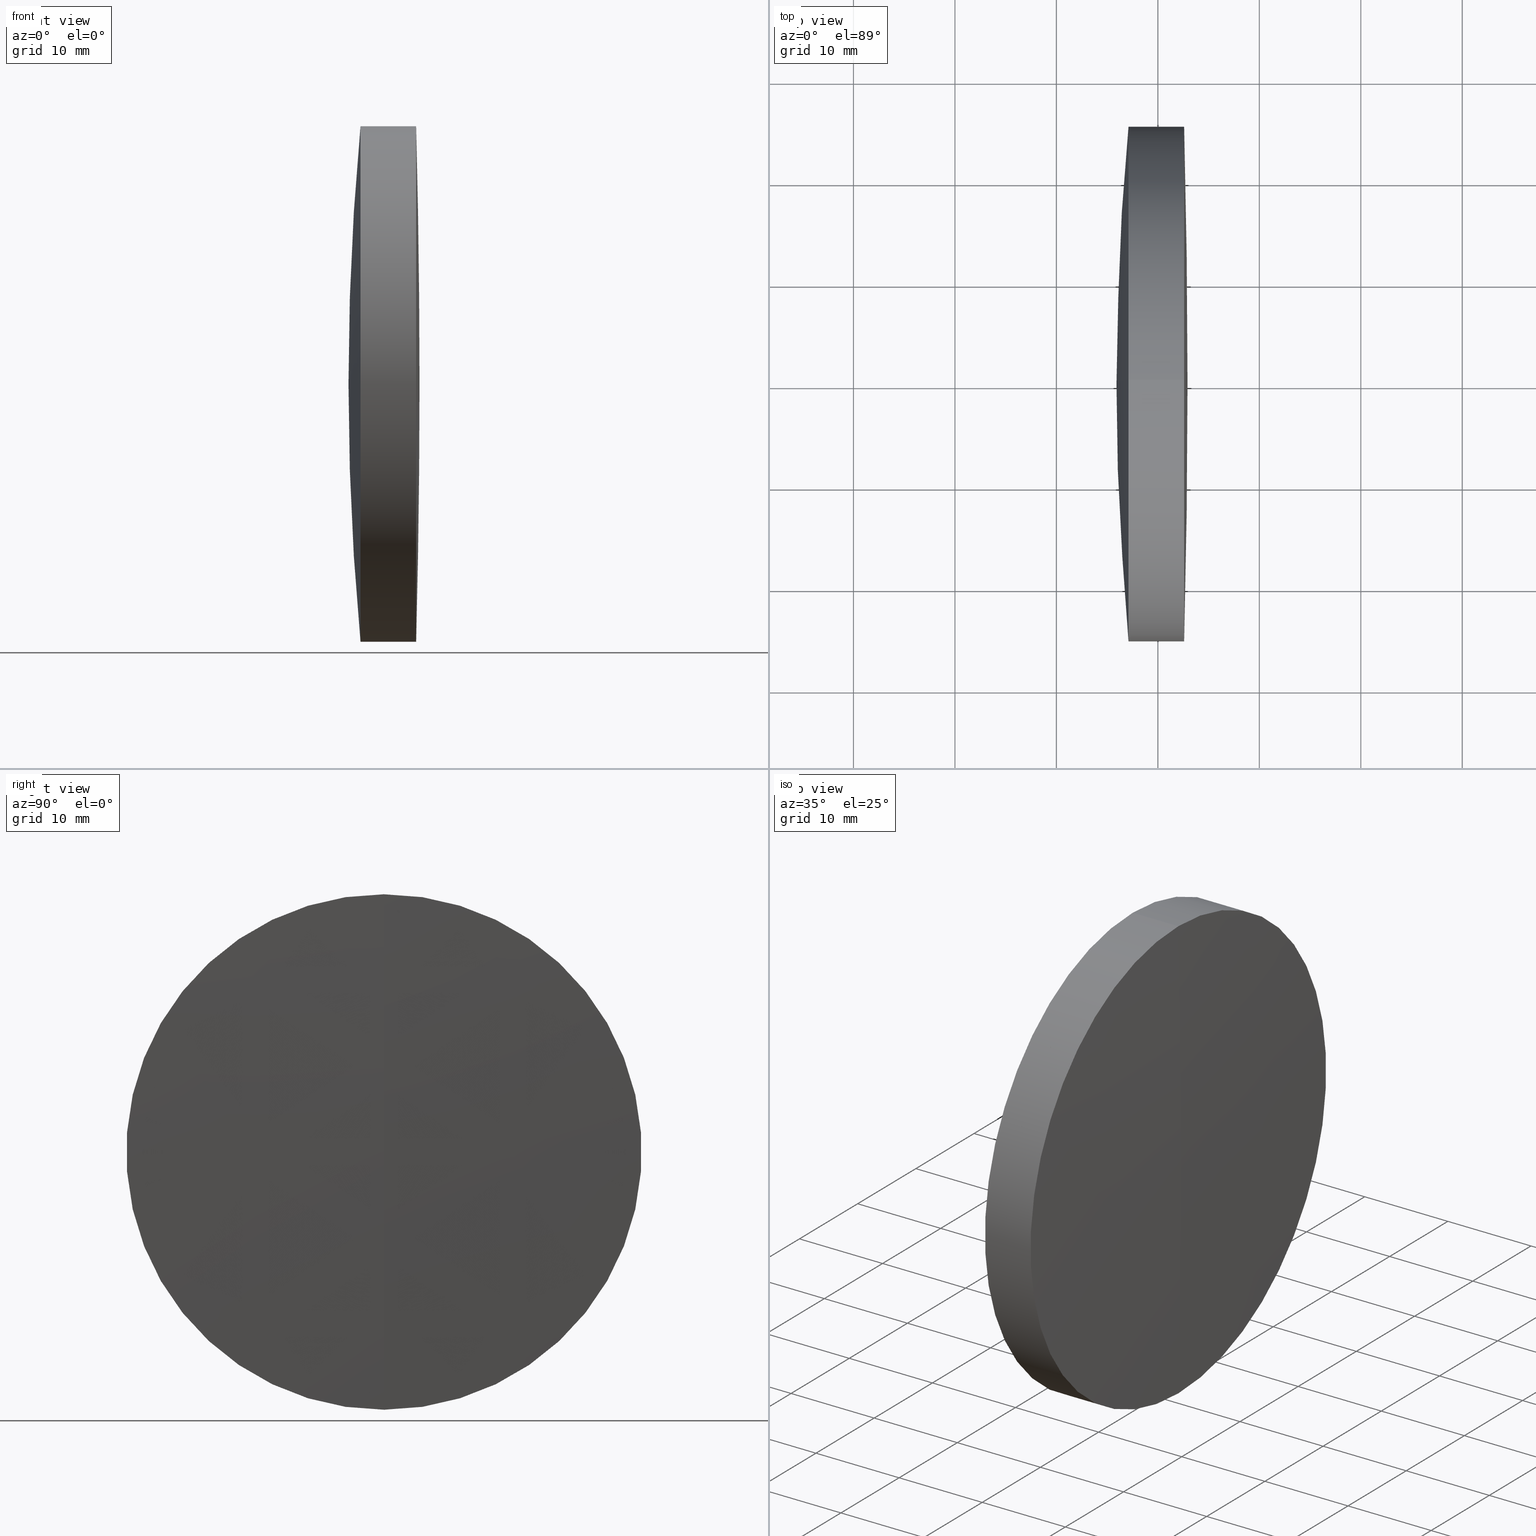
[diagram: canonical four-view strip — front | top / right | iso, engineering-drawing reading convention]
A machine part, canonical four-view strip (front | top / right | iso — engineering-drawing reading convention). The complete STEP part file that produces these views, byte-faithful:
ISO-10303-21;
HEADER;
FILE_DESCRIPTION (( 'STEP AP214' ),
    '1' );
FILE_NAME ('145093.STEP',
    '2019-05-24T10:15:04',
    ( '' ),
    ( '' ),
    'SwSTEP 2.0',
    'SolidWorks 2016',
    '' );
FILE_SCHEMA (( 'AUTOMOTIVE_DESIGN' ));
ENDSEC;

DATA;
#1 = FACE_OUTER_BOUND ( 'NONE', #96, .T. ) ;
#2 = SURFACE_SIDE_STYLE ('',( #38 ) ) ;
#3 =( LENGTH_UNIT ( ) NAMED_UNIT ( * ) SI_UNIT ( .MILLI., .METRE. ) );
#4 = UNCERTAINTY_MEASURE_WITH_UNIT (LENGTH_MEASURE( 1.000000000000000100E-005 ), #326, 'distance_accuracy_value', 'NONE');
#5 = DIRECTION ( 'NONE',  ( 0.0000000000000000000, 0.0000000000000000000, -1.000000000000000000 ) ) ;
#6 = VECTOR ( 'NONE', #11, 1000.000000000000000 ) ;
#7 = AXIS2_PLACEMENT_3D ( 'NONE', #74, #69, #272 ) ;
#8 = EDGE_CURVE ( 'NONE', #65, #235, #328, .T. ) ;
#9 = COLOUR_RGB ( '',1.000000000000000000, 1.000000000000000000, 1.000000000000000000 ) ;
#10 = ORIENTED_EDGE ( 'NONE', *, *, #193, .F. ) ;
#11 = DIRECTION ( 'NONE',  ( -1.000000000000000000, -0.0000000000000000000, -0.0000000000000000000 ) ) ;
#12 = EDGE_CURVE ( 'NONE', #211, #15, #39, .T. ) ;
#13 = EDGE_LOOP ( 'NONE', ( #18, #76, #257 ) ) ;
#14 = DIRECTION ( 'NONE',  ( 0.0000000000000000000, -1.000000000000000000, 0.0000000000000000000 ) ) ;
#15 = VERTEX_POINT ( 'NONE', #224 ) ;
#16 = DIRECTION ( 'NONE',  ( 0.0000000000000000000, 0.0000000000000000000, 1.000000000000000000 ) ) ;
#17 = DIRECTION ( 'NONE',  ( 0.0000000000000000000, -1.000000000000000000, 0.0000000000000000000 ) ) ;
#18 = ORIENTED_EDGE ( 'NONE', *, *, #8, .F. ) ;
#19 = CARTESIAN_POINT ( 'NONE',  ( 499.5922971757753400, 0.0000000000000000000, 25.39999999999962900 ) ) ;
#20 = CARTESIAN_POINT ( 'NONE',  ( 768.8217824430913700, 0.0000000000000000000, 4.399829893035820300E-015 ) ) ;
#21 = PRODUCT_DEFINITION_FORMATION_WITH_SPECIFIED_SOURCE ( '�κ�', '', #59, .NOT_KNOWN. ) ;
#22 = SPHERICAL_SURFACE ( 'NONE', #313, 272.9000000000000300 ) ;
#23 = FACE_OUTER_BOUND ( 'NONE', #129, .T. ) ;
#24 = DIRECTION ( 'NONE',  ( -0.0000000000000000000, -1.000000000000000000, -0.0000000000000000000 ) ) ;
#25 = FILL_AREA_STYLE ('',( #217 ) ) ;
#26 = FACE_OUTER_BOUND ( 'NONE', #173, .T. ) ;
#27 = PRESENTATION_STYLE_ASSIGNMENT (( #298 ) ) ;
#28 = ORIENTED_EDGE ( 'NONE', *, *, #205, .F. ) ;
#29 = CARTESIAN_POINT ( 'NONE',  ( 124.5233095260452400, 0.0000000000000000000, 0.0000000000000000000 ) ) ;
#30 = CIRCLE ( 'NONE', #325, 25.40000000000000200 ) ;
#31 = FACE_OUTER_BOUND ( 'NONE', #13, .T. ) ;
#32 = ORIENTED_EDGE ( 'NONE', *, *, #91, .F. ) ;
#33 = ORIENTED_EDGE ( 'NONE', *, *, #178, .F. ) ;
#34 = DIRECTION ( 'NONE',  ( -1.000000000000000000, -0.0000000000000000000, -0.0000000000000000000 ) ) ;
#35 = DIRECTION ( 'NONE',  ( 0.0000000000000000000, 0.0000000000000000000, 1.000000000000000000 ) ) ;
#36 = ORIENTED_EDGE ( 'NONE', *, *, #242, .T. ) ;
#37 = AXIS2_PLACEMENT_3D ( 'NONE', #290, #323, #346 ) ;
#38 = SURFACE_STYLE_FILL_AREA ( #327 ) ;
#39 = LINE ( 'NONE', #165, #6 ) ;
#40 = DIRECTION ( 'NONE',  ( 0.0000000000000000000, 1.000000000000000000, 0.0000000000000000000 ) ) ;
#41 = CARTESIAN_POINT ( 'NONE',  ( -467.0782175569086100, 0.0000000000000000000, 0.0000000000000000000 ) ) ;
#42 = ADVANCED_FACE ( 'NONE', ( #31 ), #245, .F. ) ;
#43 =( GEOMETRIC_REPRESENTATION_CONTEXT ( 3 ) GLOBAL_UNCERTAINTY_ASSIGNED_CONTEXT ( ( #88 ) ) GLOBAL_UNIT_ASSIGNED_CONTEXT ( ( #243, #122, #73 ) ) REPRESENTATION_CONTEXT ( 'NONE', 'WORKASPACE' ) );
#44 = COLOUR_RGB ( '',1.000000000000000000, 1.000000000000000000, 1.000000000000000000 ) ;
#45 = CIRCLE ( 'NONE', #279, 243.3000000000000400 ) ;
#46 = EDGE_LOOP ( 'NONE', ( #133, #151, #247 ) ) ;
#47 = DIRECTION ( 'NONE',  ( 0.0000000000000000000, -1.000000000000000000, -1.224646799147353200E-016 ) ) ;
#48 = ORIENTED_EDGE ( 'NONE', *, *, #158, .T. ) ;
#49 = DIRECTION ( 'NONE',  ( -0.0000000000000000000, 1.000000000000000000, 1.224646799147353200E-016 ) ) ;
#50 =( NAMED_UNIT ( * ) PLANE_ANGLE_UNIT ( ) SI_UNIT ( $, .RADIAN. ) );
#51 = FACE_OUTER_BOUND ( 'NONE', #195, .T. ) ;
#52 = EDGE_LOOP ( 'NONE', ( #262, #300, #322 ) ) ;
#53 = EDGE_CURVE ( 'NONE', #211, #71, #281, .T. ) ;
#54 = CIRCLE ( 'NONE', #229, 272.9000000000000300 ) ;
#55 = ORIENTED_EDGE ( 'NONE', *, *, #248, .T. ) ;
#56 = SPHERICAL_SURFACE ( 'NONE', #57, 970.0000000000000000 ) ;
#57 = AXIS2_PLACEMENT_3D ( 'NONE', #116, #40, #177 ) ;
#58 = ORIENTED_EDGE ( 'NONE', *, *, #223, .T. ) ;
#59 = PRODUCT ( '145093', '145093', '', ( #191 ) ) ;
#60 = ORIENTED_EDGE ( 'NONE', *, *, #12, .F. ) ;
#61 = CLOSED_SHELL ( 'NONE', ( #342, #64, #316, #185, #181, #119 ) ) ;
#62 = DIRECTION ( 'NONE',  ( 0.0000000000000000000, -1.224646799147353000E-016, 1.000000000000000000 ) ) ;
#63 = DIRECTION ( 'NONE',  ( -1.000000000000000000, -0.0000000000000000000, -0.0000000000000000000 ) ) ;
#64 = ADVANCED_FACE ( 'NONE', ( #1 ), #320, .T. ) ;
#65 = VERTEX_POINT ( 'NONE', #194 ) ;
#66 = CARTESIAN_POINT ( 'NONE',  ( 499.5922971757753400, 0.0000000000000000000, 0.0000000000000000000 ) ) ;
#67 = SURFACE_SIDE_STYLE ('',( #70 ) ) ;
#68 = AXIS2_PLACEMENT_3D ( 'NONE', #41, #92, #297 ) ;
#69 = DIRECTION ( 'NONE',  ( 0.0000000000000000000, 1.000000000000000000, 0.0000000000000000000 ) ) ;
#70 = SURFACE_STYLE_FILL_AREA ( #25 ) ;
#71 = VERTEX_POINT ( 'NONE', #221 ) ;
#72 = ORIENTED_EDGE ( 'NONE', *, *, #306, .T. ) ;
#73 =( NAMED_UNIT ( * ) SI_UNIT ( $, .STERADIAN. ) SOLID_ANGLE_UNIT ( ) );
#74 = CARTESIAN_POINT ( 'NONE',  ( 257.6217824430913800, 0.0000000000000000000, 2.168404344971008900E-016 ) ) ;
#75 = EDGE_CURVE ( 'NONE', #196, #280, #218, .T. ) ;
#76 = ORIENTED_EDGE ( 'NONE', *, *, #254, .T. ) ;
#77 = FACE_OUTER_BOUND ( 'NONE', #192, .T. ) ;
#78 = ORIENTED_EDGE ( 'NONE', *, *, #135, .F. ) ;
#79 = DIRECTION ( 'NONE',  ( 0.0000000000000000000, 1.000000000000000000, 0.0000000000000000000 ) ) ;
#80 =( GEOMETRIC_REPRESENTATION_CONTEXT ( 3 ) GLOBAL_UNCERTAINTY_ASSIGNED_CONTEXT ( ( #113 ) ) GLOBAL_UNIT_ASSIGNED_CONTEXT ( ( #159, #246, #126 ) ) REPRESENTATION_CONTEXT ( 'NONE', 'WORKASPACE' ) );
#81 = CYLINDRICAL_SURFACE ( 'NONE', #169, 25.39999999999965000 ) ;
#82 = EDGE_LOOP ( 'NONE', ( #162, #345, #58 ) ) ;
#83 = DIRECTION ( 'NONE',  ( 0.0000000000000000000, 0.0000000000000000000, 1.000000000000000000 ) ) ;
#84 = CARTESIAN_POINT ( 'NONE',  ( -0.5519199926577972300, 0.0000000000000000000, 25.39999999999965000 ) ) ;
#85 = AXIS2_PLACEMENT_3D ( 'NONE', #291, #264, #344 ) ;
#86 = VECTOR ( 'NONE', #228, 1000.000000000000000 ) ;
#87 = CARTESIAN_POINT ( 'NONE',  ( 502.9217824430913900, 0.0000000000000000000, 5.939536975864663500E-014 ) ) ;
#88 = UNCERTAINTY_MEASURE_WITH_UNIT (LENGTH_MEASURE( 1.000000000000000100E-005 ), #243, 'distance_accuracy_value', 'NONE');
#89 = VERTEX_POINT ( 'NONE', #108 ) ;
#90 = CARTESIAN_POINT ( 'NONE',  ( 768.8217824430913700, 0.0000000000000000000, 4.399829893035820300E-015 ) ) ;
#91 = EDGE_CURVE ( 'NONE', #222, #235, #311, .T. ) ;
#92 = DIRECTION ( 'NONE',  ( 0.0000000000000000000, 1.000000000000000000, 0.0000000000000000000 ) ) ;
#93 = PRESENTATION_LAYER_ASSIGNMENT (  '', '', ( #270 ) ) ;
#94 = CIRCLE ( 'NONE', #227, 25.40000000000000200 ) ;
#95 = SURFACE_SIDE_STYLE ('',( #330 ) ) ;
#96 = EDGE_LOOP ( 'NONE', ( #295, #148, #28, #225 ) ) ;
#97 = EDGE_LOOP ( 'NONE', ( #308, #55, #104, #210 ) ) ;
#98 = SURFACE_STYLE_USAGE ( .BOTH. , #67 ) ;
#99 = PRESENTATION_LAYER_ASSIGNMENT (  '', '', ( #130 ) ) ;
#100 = CARTESIAN_POINT ( 'NONE',  ( 257.6217824430913800, 0.0000000000000000000, 2.168404344971008900E-016 ) ) ;
#101 = AXIS2_PLACEMENT_3D ( 'NONE', #251, #14, #333 ) ;
#102 = ADVANCED_BREP_SHAPE_REPRESENTATION ( '145093', ( #317, #304, #198 ), #80 ) ;
#103 = CIRCLE ( 'NONE', #183, 25.39999999999961100 ) ;
#104 = ORIENTED_EDGE ( 'NONE', *, *, #91, .T. ) ;
#105 = CARTESIAN_POINT ( 'NONE',  ( -0.5519199926577972300, 0.0000000000000000000, 0.0000000000000000000 ) ) ;
#106 = FACE_OUTER_BOUND ( 'NONE', #46, .T. ) ;
#107 = DIRECTION ( 'NONE',  ( 0.0000000000000000000, 1.000000000000000000, 0.0000000000000000000 ) ) ;
#108 = CARTESIAN_POINT ( 'NONE',  ( 497.1063982632478000, -3.110602869834300500E-015, 25.40000000000019800 ) ) ;
#109 = CARTESIAN_POINT ( 'NONE',  ( -0.5519199926577972300, 0.0000000000000000000, 0.0000000000000000000 ) ) ;
#110 = ORIENTED_EDGE ( 'NONE', *, *, #315, .T. ) ;
#111 = DIRECTION ( 'NONE',  ( 0.0000000000000000000, 0.0000000000000000000, 1.000000000000000000 ) ) ;
#112 = ADVANCED_FACE ( 'NONE', ( #253 ), #179, .T. ) ;
#113 = UNCERTAINTY_MEASURE_WITH_UNIT (LENGTH_MEASURE( 1.000000000000000100E-005 ), #159, 'distance_accuracy_value', 'NONE');
#114 = CARTESIAN_POINT ( 'NONE',  ( 257.6217824430913800, 0.0000000000000000000, 2.168404344971008900E-016 ) ) ;
#115 = MECHANICAL_DESIGN_GEOMETRIC_PRESENTATION_REPRESENTATION (  '', ( #130 ), #301 ) ;
#116 = CARTESIAN_POINT ( 'NONE',  ( -467.0782175569086100, 0.0000000000000000000, 0.0000000000000000000 ) ) ;
#117 = CYLINDRICAL_SURFACE ( 'NONE', #209, 25.40000000000000200 ) ;
#118 = EDGE_LOOP ( 'NONE', ( #10, #110, #338 ) ) ;
#119 = ADVANCED_FACE ( 'NONE', ( #23 ), #160, .T. ) ;
#120 = MECHANICAL_DESIGN_GEOMETRIC_PRESENTATION_REPRESENTATION (  '', ( #319 ), #43 ) ;
#121 = AXIS2_PLACEMENT_3D ( 'NONE', #332, #132, #134 ) ;
#122 =( NAMED_UNIT ( * ) PLANE_ANGLE_UNIT ( ) SI_UNIT ( $, .RADIAN. ) );
#123 = SHAPE_DEFINITION_REPRESENTATION ( #283, #102 ) ;
#124 = ORIENTED_EDGE ( 'NONE', *, *, #8, .T. ) ;
#125 =( NAMED_UNIT ( * ) PLANE_ANGLE_UNIT ( ) SI_UNIT ( $, .RADIAN. ) );
#126 =( NAMED_UNIT ( * ) SI_UNIT ( $, .STERADIAN. ) SOLID_ANGLE_UNIT ( ) );
#127 = AXIS2_PLACEMENT_3D ( 'NONE', #29, #34, #167 ) ;
#128 = VERTEX_POINT ( 'NONE', #258 ) ;
#129 = EDGE_LOOP ( 'NONE', ( #78, #72, #240 ) ) ;
#130 = STYLED_ITEM ( 'NONE', ( #27 ), #304 ) ;
#131 = APPLICATION_PROTOCOL_DEFINITION ( 'draft international standard', 'automotive_design', 1998, #277 ) ;
#132 = DIRECTION ( 'NONE',  ( -1.000000000000000000, -0.0000000000000000000, -0.0000000000000000000 ) ) ;
#133 = ORIENTED_EDGE ( 'NONE', *, *, #306, .F. ) ;
#134 = DIRECTION ( 'NONE',  ( 0.0000000000000000000, 0.0000000000000000000, 1.000000000000000000 ) ) ;
#135 = EDGE_CURVE ( 'NONE', #146, #211, #168, .T. ) ;
#136 = PRESENTATION_LAYER_ASSIGNMENT (  '', '', ( #319 ) ) ;
#137 = LINE ( 'NONE', #310, #233 ) ;
#138 = CLOSED_SHELL ( 'NONE', ( #261, #145, #42, #234, #112, #266 ) ) ;
#139 = CARTESIAN_POINT ( 'NONE',  ( -467.0782175569086100, 0.0000000000000000000, 0.0000000000000000000 ) ) ;
#140 = CARTESIAN_POINT ( 'NONE',  ( 768.8217824430913700, 0.0000000000000000000, 4.399829893035820300E-015 ) ) ;
#141 = PRESENTATION_STYLE_ASSIGNMENT (( #157 ) ) ;
#142 = PRODUCT_RELATED_PRODUCT_CATEGORY ( 'part', '', ( #59 ) ) ;
#143 = FACE_OUTER_BOUND ( 'NONE', #303, .T. ) ;
#144 = AXIS2_PLACEMENT_3D ( 'NONE', #100, #79, #197 ) ;
#145 = ADVANCED_FACE ( 'NONE', ( #26 ), #81, .T. ) ;
#146 = VERTEX_POINT ( 'NONE', #201 ) ;
#147 = DIRECTION ( 'NONE',  ( -1.000000000000000000, -0.0000000000000000000, -0.0000000000000000000 ) ) ;
#148 = ORIENTED_EDGE ( 'NONE', *, *, #12, .T. ) ;
#149 = DIRECTION ( 'NONE',  ( -1.000000000000000000, -0.0000000000000000000, -0.0000000000000000000 ) ) ;
#150 = AXIS2_PLACEMENT_3D ( 'NONE', #139, #17, #204 ) ;
#151 = ORIENTED_EDGE ( 'NONE', *, *, #135, .T. ) ;
#152 = DIRECTION ( 'NONE',  ( 0.0000000000000000000, 0.0000000000000000000, 1.000000000000000000 ) ) ;
#153 =( GEOMETRIC_REPRESENTATION_CONTEXT ( 3 ) GLOBAL_UNCERTAINTY_ASSIGNED_CONTEXT ( ( #252 ) ) GLOBAL_UNIT_ASSIGNED_CONTEXT ( ( #3, #50, #278 ) ) REPRESENTATION_CONTEXT ( 'NONE', 'WORKASPACE' ) );
#154 = PRODUCT_DEFINITION_CONTEXT ( 'detailed design', #277, 'design' ) ;
#155 = FILL_AREA_STYLE_COLOUR ( '', #214 ) ;
#156 = FACE_OUTER_BOUND ( 'NONE', #82, .T. ) ;
#157 = SURFACE_STYLE_USAGE ( .BOTH. , #95 ) ;
#158 = EDGE_CURVE ( 'NONE', #71, #89, #137, .T. ) ;
#159 =( LENGTH_UNIT ( ) NAMED_UNIT ( * ) SI_UNIT ( .MILLI., .METRE. ) );
#160 = SPHERICAL_SURFACE ( 'NONE', #292, 243.3000000000000400 ) ;
#161 = AXIS2_PLACEMENT_3D ( 'NONE', #90, #296, #321 ) ;
#162 = ORIENTED_EDGE ( 'NONE', *, *, #287, .F. ) ;
#163 = DIRECTION ( 'NONE',  ( 0.0000000000000000000, 0.0000000000000000000, 1.000000000000000000 ) ) ;
#164 = ORIENTED_EDGE ( 'NONE', *, *, #315, .F. ) ;
#165 = CARTESIAN_POINT ( 'NONE',  ( 124.5233095260452400, 3.110602869834277300E-015, -25.40000000000000200 ) ) ;
#166 = AXIS2_PLACEMENT_3D ( 'NONE', #255, #288, #62 ) ;
#167 = DIRECTION ( 'NONE',  ( 0.0000000000000000000, 0.0000000000000000000, 1.000000000000000000 ) ) ;
#168 = CIRCLE ( 'NONE', #166, 243.3000000000000400 ) ;
#169 = AXIS2_PLACEMENT_3D ( 'NONE', #105, #285, #206 ) ;
#170 = DIRECTION ( 'NONE',  ( -1.000000000000000000, -0.0000000000000000000, -0.0000000000000000000 ) ) ;
#171 = DIRECTION ( 'NONE',  ( 0.0000000000000000000, 0.0000000000000000000, 1.000000000000000000 ) ) ;
#172 = SPHERICAL_SURFACE ( 'NONE', #7, 243.3000000000000400 ) ;
#173 = EDGE_LOOP ( 'NONE', ( #36, #341, #33, #32 ) ) ;
#174 = CARTESIAN_POINT ( 'NONE',  ( 499.5922971757753400, 0.0000000000000000000, 0.0000000000000000000 ) ) ;
#175 = CARTESIAN_POINT ( 'NONE',  ( 497.1063982632478000, 0.0000000000000000000, 0.0000000000000000000 ) ) ;
#176 = SPHERICAL_SURFACE ( 'NONE', #68, 970.0000000000000000 ) ;
#177 = DIRECTION ( 'NONE',  ( 0.0000000000000000000, 0.0000000000000000000, 1.000000000000000000 ) ) ;
#178 = EDGE_CURVE ( 'NONE', #235, #280, #256, .T. ) ;
#179 = CYLINDRICAL_SURFACE ( 'NONE', #334, 25.39999999999965000 ) ;
#180 = ORIENTED_EDGE ( 'NONE', *, *, #230, .F. ) ;
#181 = ADVANCED_FACE ( 'NONE', ( #77 ), #117, .T. ) ;
#182 = ORIENTED_EDGE ( 'NONE', *, *, #53, .T. ) ;
#183 = AXIS2_PLACEMENT_3D ( 'NONE', #184, #239, #111 ) ;
#184 = CARTESIAN_POINT ( 'NONE',  ( 502.5891687153119800, 0.0000000000000000000, 0.0000000000000000000 ) ) ;
#185 = ADVANCED_FACE ( 'NONE', ( #156 ), #231, .T. ) ;
#186 = CIRCLE ( 'NONE', #161, 272.9000000000000300 ) ;
#187 = ORIENTED_EDGE ( 'NONE', *, *, #254, .F. ) ;
#188 = APPLICATION_CONTEXT ( 'automotive_design' ) ;
#189 = AXIS2_PLACEMENT_3D ( 'NONE', #140, #337, #202 ) ;
#190 = CIRCLE ( 'NONE', #309, 243.3000000000000400 ) ;
#191 = PRODUCT_CONTEXT ( 'NONE', #188, 'mechanical' ) ;
#192 = EDGE_LOOP ( 'NONE', ( #60, #182, #48, #180 ) ) ;
#193 = EDGE_CURVE ( 'NONE', #284, #222, #299, .T. ) ;
#194 = CARTESIAN_POINT ( 'NONE',  ( 500.9217824430913900, 0.0000000000000000000, 1.511466874612465300E-014 ) ) ;
#195 = EDGE_LOOP ( 'NONE', ( #187, #124, #336 ) ) ;
#196 = VERTEX_POINT ( 'NONE', #259 ) ;
#197 = DIRECTION ( 'NONE',  ( 0.0000000000000000000, 0.0000000000000000000, 1.000000000000000000 ) ) ;
#198 = AXIS2_PLACEMENT_3D ( 'NONE', #249, #163, #219 ) ;
#199 = PRESENTATION_STYLE_ASSIGNMENT (( #98 ) ) ;
#200 = CARTESIAN_POINT ( 'NONE',  ( 257.6217824430913800, 0.0000000000000000000, 2.168404344971008900E-016 ) ) ;
#201 = CARTESIAN_POINT ( 'NONE',  ( 500.9217824430913900, 0.0000000000000000000, 1.511466874612465300E-014 ) ) ;
#202 = DIRECTION ( 'NONE',  ( 0.0000000000000000000, 0.0000000000000000000, -1.000000000000000000 ) ) ;
#203 = AXIS2_PLACEMENT_3D ( 'NONE', #269, #147, #207 ) ;
#204 = DIRECTION ( 'NONE',  ( 0.0000000000000000000, 0.0000000000000000000, -1.000000000000000000 ) ) ;
#205 = EDGE_CURVE ( 'NONE', #89, #15, #94, .T. ) ;
#206 = DIRECTION ( 'NONE',  ( 0.0000000000000000000, 0.0000000000000000000, 1.000000000000000000 ) ) ;
#207 = DIRECTION ( 'NONE',  ( 0.0000000000000000000, 0.0000000000000000000, 1.000000000000000000 ) ) ;
#208 = DIRECTION ( 'NONE',  ( 0.0000000000000000000, -1.224646799147353000E-016, 1.000000000000000000 ) ) ;
#209 = AXIS2_PLACEMENT_3D ( 'NONE', #232, #170, #16 ) ;
#210 = ORIENTED_EDGE ( 'NONE', *, *, #271, .F. ) ;
#211 = VERTEX_POINT ( 'NONE', #282 ) ;
#212 = DIRECTION ( 'NONE',  ( 0.0000000000000000000, 0.0000000000000000000, 1.000000000000000000 ) ) ;
#213 = APPLICATION_PROTOCOL_DEFINITION ( 'draft international standard', 'automotive_design', 1998, #188 ) ;
#214 = COLOUR_RGB ( '',1.000000000000000000, 1.000000000000000000, 1.000000000000000000 ) ;
#215 = DIRECTION ( 'NONE',  ( 0.0000000000000000000, -1.224646799147353200E-016, 1.000000000000000000 ) ) ;
#216 = DIRECTION ( 'NONE',  ( 0.0000000000000000000, 1.224646799147353200E-016, -1.000000000000000000 ) ) ;
#217 = FILL_AREA_STYLE_COLOUR ( '', #44 ) ;
#218 = LINE ( 'NONE', #226, #86 ) ;
#219 = DIRECTION ( 'NONE',  ( 1.000000000000000000, 0.0000000000000000000, 0.0000000000000000000 ) ) ;
#220 = CIRCLE ( 'NONE', #37, 25.39999999999961100 ) ;
#221 = CARTESIAN_POINT ( 'NONE',  ( 499.5922971757753400, 0.0000000000000000000, 25.40000000000000200 ) ) ;
#222 = VERTEX_POINT ( 'NONE', #340 ) ;
#223 = EDGE_CURVE ( 'NONE', #15, #128, #186, .T. ) ;
#224 = CARTESIAN_POINT ( 'NONE',  ( 497.1063982632478000, 0.0000000000000000000, -25.40000000000019400 ) ) ;
#225 = ORIENTED_EDGE ( 'NONE', *, *, #158, .F. ) ;
#226 = CARTESIAN_POINT ( 'NONE',  ( -0.5519199926577972300, 3.110602869834234700E-015, -25.39999999999965000 ) ) ;
#227 = AXIS2_PLACEMENT_3D ( 'NONE', #175, #149, #237 ) ;
#228 = DIRECTION ( 'NONE',  ( -1.000000000000000000, -0.0000000000000000000, -0.0000000000000000000 ) ) ;
#229 = AXIS2_PLACEMENT_3D ( 'NONE', #20, #47, #216 ) ;
#230 = EDGE_CURVE ( 'NONE', #15, #89, #331, .T. ) ;
#231 = SPHERICAL_SURFACE ( 'NONE', #189, 272.9000000000000300 ) ;
#232 = CARTESIAN_POINT ( 'NONE',  ( 124.5233095260452400, 0.0000000000000000000, 0.0000000000000000000 ) ) ;
#233 = VECTOR ( 'NONE', #339, 1000.000000000000000 ) ;
#234 = ADVANCED_FACE ( 'NONE', ( #51 ), #324, .F. ) ;
#235 = VERTEX_POINT ( 'NONE', #19 ) ;
#236 = ORIENTED_EDGE ( 'NONE', *, *, #193, .T. ) ;
#237 = DIRECTION ( 'NONE',  ( 0.0000000000000000000, 0.0000000000000000000, 1.000000000000000000 ) ) ;
#238 = CARTESIAN_POINT ( 'NONE',  ( 499.5922971757753400, 3.110602869834231500E-015, -25.39999999999962900 ) ) ;
#239 = DIRECTION ( 'NONE',  ( -1.000000000000000000, -0.0000000000000000000, -0.0000000000000000000 ) ) ;
#240 = ORIENTED_EDGE ( 'NONE', *, *, #53, .F. ) ;
#241 = CARTESIAN_POINT ( 'NONE',  ( -467.0782175569086100, 0.0000000000000000000, 0.0000000000000000000 ) ) ;
#242 = EDGE_CURVE ( 'NONE', #222, #196, #220, .T. ) ;
#243 =( LENGTH_UNIT ( ) NAMED_UNIT ( * ) SI_UNIT ( .MILLI., .METRE. ) );
#244 = CARTESIAN_POINT ( 'NONE',  ( 768.8217824430913700, 0.0000000000000000000, 4.399829893035820300E-015 ) ) ;
#245 = SPHERICAL_SURFACE ( 'NONE', #144, 243.3000000000000400 ) ;
#246 =( NAMED_UNIT ( * ) PLANE_ANGLE_UNIT ( ) SI_UNIT ( $, .RADIAN. ) );
#247 = ORIENTED_EDGE ( 'NONE', *, *, #265, .F. ) ;
#248 = EDGE_CURVE ( 'NONE', #196, #222, #103, .T. ) ;
#249 = CARTESIAN_POINT ( 'NONE',  ( 0.0000000000000000000, 0.0000000000000000000, 0.0000000000000000000 ) ) ;
#250 = PRODUCT_DEFINITION ( 'δ֪', '', #21, #154 ) ;
#251 = CARTESIAN_POINT ( 'NONE',  ( 257.6217824430913800, 0.0000000000000000000, 2.168404344971008900E-016 ) ) ;
#252 = UNCERTAINTY_MEASURE_WITH_UNIT (LENGTH_MEASURE( 1.000000000000000100E-005 ), #3, 'distance_accuracy_value', 'NONE');
#253 = FACE_OUTER_BOUND ( 'NONE', #97, .T. ) ;
#254 = EDGE_CURVE ( 'NONE', #65, #280, #45, .T. ) ;
#255 = CARTESIAN_POINT ( 'NONE',  ( 257.6217824430913800, 0.0000000000000000000, 2.168404344971008900E-016 ) ) ;
#256 = CIRCLE ( 'NONE', #343, 25.39999999999969300 ) ;
#257 = ORIENTED_EDGE ( 'NONE', *, *, #271, .T. ) ;
#258 = CARTESIAN_POINT ( 'NONE',  ( 495.9217824430913900, 0.0000000000000000000, -1.231047568132981600E-014 ) ) ;
#259 = CARTESIAN_POINT ( 'NONE',  ( 502.5891687153119800, 3.110602869834232300E-015, -25.39999999999961100 ) ) ;
#260 = FACE_OUTER_BOUND ( 'NONE', #118, .T. ) ;
#261 = ADVANCED_FACE ( 'NONE', ( #260 ), #56, .T. ) ;
#262 = ORIENTED_EDGE ( 'NONE', *, *, #230, .T. ) ;
#263 = DIRECTION ( 'NONE',  ( -1.000000000000000000, -0.0000000000000000000, -0.0000000000000000000 ) ) ;
#264 = DIRECTION ( 'NONE',  ( 0.0000000000000000000, 1.000000000000000000, 0.0000000000000000000 ) ) ;
#265 = EDGE_CURVE ( 'NONE', #71, #211, #30, .T. ) ;
#266 = ADVANCED_FACE ( 'NONE', ( #143 ), #176, .T. ) ;
#267 = CIRCLE ( 'NONE', #203, 25.39999999999969300 ) ;
#268 = ORIENTED_EDGE ( 'NONE', *, *, #248, .F. ) ;
#269 = CARTESIAN_POINT ( 'NONE',  ( 499.5922971757753400, 0.0000000000000000000, 0.0000000000000000000 ) ) ;
#270 = STYLED_ITEM ( 'NONE', ( #141 ), #102 ) ;
#271 = EDGE_CURVE ( 'NONE', #280, #235, #267, .T. ) ;
#272 = DIRECTION ( 'NONE',  ( 0.0000000000000000000, 0.0000000000000000000, 1.000000000000000000 ) ) ;
#273 =( NAMED_UNIT ( * ) SI_UNIT ( $, .STERADIAN. ) SOLID_ANGLE_UNIT ( ) );
#274 = FILL_AREA_STYLE ('',( #155 ) ) ;
#275 = CARTESIAN_POINT ( 'NONE',  ( 257.6217824430913800, 0.0000000000000000000, 2.168404344971008900E-016 ) ) ;
#276 = DIRECTION ( 'NONE',  ( 0.0000000000000000000, -1.000000000000000000, 0.0000000000000000000 ) ) ;
#277 = APPLICATION_CONTEXT ( 'automotive_design' ) ;
#278 =( NAMED_UNIT ( * ) SI_UNIT ( $, .STERADIAN. ) SOLID_ANGLE_UNIT ( ) );
#279 = AXIS2_PLACEMENT_3D ( 'NONE', #114, #318, #208 ) ;
#280 = VERTEX_POINT ( 'NONE', #238 ) ;
#281 = CIRCLE ( 'NONE', #121, 25.40000000000000200 ) ;
#282 = CARTESIAN_POINT ( 'NONE',  ( 499.5922971757753400, 3.110602869834277300E-015, -25.40000000000000200 ) ) ;
#283 = PRODUCT_DEFINITION_SHAPE ( 'NONE', 'NONE',  #250 ) ;
#284 = VERTEX_POINT ( 'NONE', #87 ) ;
#285 = DIRECTION ( 'NONE',  ( -1.000000000000000000, -0.0000000000000000000, -0.0000000000000000000 ) ) ;
#286 = MECHANICAL_DESIGN_GEOMETRIC_PRESENTATION_REPRESENTATION (  '', ( #270 ), #153 ) ;
#287 = EDGE_CURVE ( 'NONE', #89, #128, #54, .T. ) ;
#288 = DIRECTION ( 'NONE',  ( -0.0000000000000000000, 1.000000000000000000, 1.224646799147353200E-016 ) ) ;
#289 = DIRECTION ( 'NONE',  ( -1.000000000000000000, -0.0000000000000000000, -0.0000000000000000000 ) ) ;
#290 = CARTESIAN_POINT ( 'NONE',  ( 502.5891687153119800, 0.0000000000000000000, 0.0000000000000000000 ) ) ;
#291 = CARTESIAN_POINT ( 'NONE',  ( 257.6217824430913800, 0.0000000000000000000, 2.168404344971008900E-016 ) ) ;
#292 = AXIS2_PLACEMENT_3D ( 'NONE', #200, #107, #83 ) ;
#293 = CARTESIAN_POINT ( 'NONE',  ( 497.1063982632478000, 0.0000000000000000000, 0.0000000000000000000 ) ) ;
#294 = VECTOR ( 'NONE', #289, 1000.000000000000000 ) ;
#295 = ORIENTED_EDGE ( 'NONE', *, *, #265, .T. ) ;
#296 = DIRECTION ( 'NONE',  ( 0.0000000000000000000, 1.000000000000000000, -0.0000000000000000000 ) ) ;
#297 = DIRECTION ( 'NONE',  ( 0.0000000000000000000, 0.0000000000000000000, 1.000000000000000000 ) ) ;
#298 = SURFACE_STYLE_USAGE ( .BOTH. , #2 ) ;
#299 = CIRCLE ( 'NONE', #150, 970.0000000000000000 ) ;
#300 = ORIENTED_EDGE ( 'NONE', *, *, #287, .T. ) ;
#301 =( GEOMETRIC_REPRESENTATION_CONTEXT ( 3 ) GLOBAL_UNCERTAINTY_ASSIGNED_CONTEXT ( ( #4 ) ) GLOBAL_UNIT_ASSIGNED_CONTEXT ( ( #326, #125, #273 ) ) REPRESENTATION_CONTEXT ( 'NONE', 'WORKASPACE' ) );
#302 = AXIS2_PLACEMENT_3D ( 'NONE', #241, #49, #215 ) ;
#303 = EDGE_LOOP ( 'NONE', ( #164, #236, #268 ) ) ;
#304 = MANIFOLD_SOLID_BREP ( '��ת3', #138 ) ;
#305 = AXIS2_PLACEMENT_3D ( 'NONE', #293, #63, #212 ) ;
#306 = EDGE_CURVE ( 'NONE', #146, #71, #190, .T. ) ;
#307 = FACE_OUTER_BOUND ( 'NONE', #52, .T. ) ;
#308 = ORIENTED_EDGE ( 'NONE', *, *, #75, .F. ) ;
#309 = AXIS2_PLACEMENT_3D ( 'NONE', #275, #276, #5 ) ;
#310 = CARTESIAN_POINT ( 'NONE',  ( 124.5233095260452400, 0.0000000000000000000, 25.40000000000000200 ) ) ;
#311 = LINE ( 'NONE', #84, #294 ) ;
#312 = DIRECTION ( 'NONE',  ( -1.000000000000000000, -0.0000000000000000000, -0.0000000000000000000 ) ) ;
#313 = AXIS2_PLACEMENT_3D ( 'NONE', #244, #24, #329 ) ;
#314 = DIRECTION ( 'NONE',  ( -1.000000000000000000, -0.0000000000000000000, -0.0000000000000000000 ) ) ;
#315 = EDGE_CURVE ( 'NONE', #284, #196, #335, .T. ) ;
#316 = ADVANCED_FACE ( 'NONE', ( #307 ), #22, .T. ) ;
#317 = MANIFOLD_SOLID_BREP ( '��ת1', #61 ) ;
#318 = DIRECTION ( 'NONE',  ( -0.0000000000000000000, 1.000000000000000000, 1.224646799147353200E-016 ) ) ;
#319 = STYLED_ITEM ( 'NONE', ( #199 ), #317 ) ;
#320 = CYLINDRICAL_SURFACE ( 'NONE', #127, 25.40000000000000200 ) ;
#321 = DIRECTION ( 'NONE',  ( 0.0000000000000000000, 0.0000000000000000000, 1.000000000000000000 ) ) ;
#322 = ORIENTED_EDGE ( 'NONE', *, *, #223, .F. ) ;
#323 = DIRECTION ( 'NONE',  ( -1.000000000000000000, -0.0000000000000000000, -0.0000000000000000000 ) ) ;
#324 = SPHERICAL_SURFACE ( 'NONE', #85, 243.3000000000000400 ) ;
#325 = AXIS2_PLACEMENT_3D ( 'NONE', #66, #263, #152 ) ;
#326 =( LENGTH_UNIT ( ) NAMED_UNIT ( * ) SI_UNIT ( .MILLI., .METRE. ) );
#327 = FILL_AREA_STYLE ('',( #347 ) ) ;
#328 = CIRCLE ( 'NONE', #101, 243.3000000000000400 ) ;
#329 = DIRECTION ( 'NONE',  ( 0.0000000000000000000, 0.0000000000000000000, -1.000000000000000000 ) ) ;
#330 = SURFACE_STYLE_FILL_AREA ( #274 ) ;
#331 = CIRCLE ( 'NONE', #305, 25.40000000000000200 ) ;
#332 = CARTESIAN_POINT ( 'NONE',  ( 499.5922971757753400, 0.0000000000000000000, 0.0000000000000000000 ) ) ;
#333 = DIRECTION ( 'NONE',  ( 0.0000000000000000000, 0.0000000000000000000, -1.000000000000000000 ) ) ;
#334 = AXIS2_PLACEMENT_3D ( 'NONE', #109, #314, #35 ) ;
#335 = CIRCLE ( 'NONE', #302, 970.0000000000000000 ) ;
#336 = ORIENTED_EDGE ( 'NONE', *, *, #178, .T. ) ;
#337 = DIRECTION ( 'NONE',  ( -0.0000000000000000000, -1.000000000000000000, -0.0000000000000000000 ) ) ;
#338 = ORIENTED_EDGE ( 'NONE', *, *, #242, .F. ) ;
#339 = DIRECTION ( 'NONE',  ( -1.000000000000000000, -0.0000000000000000000, -0.0000000000000000000 ) ) ;
#340 = CARTESIAN_POINT ( 'NONE',  ( 502.5891687153119800, 0.0000000000000000000, 25.39999999999961100 ) ) ;
#341 = ORIENTED_EDGE ( 'NONE', *, *, #75, .T. ) ;
#342 = ADVANCED_FACE ( 'NONE', ( #106 ), #172, .T. ) ;
#343 = AXIS2_PLACEMENT_3D ( 'NONE', #174, #312, #171 ) ;
#344 = DIRECTION ( 'NONE',  ( 0.0000000000000000000, 0.0000000000000000000, 1.000000000000000000 ) ) ;
#345 = ORIENTED_EDGE ( 'NONE', *, *, #205, .T. ) ;
#346 = DIRECTION ( 'NONE',  ( 0.0000000000000000000, 0.0000000000000000000, 1.000000000000000000 ) ) ;
#347 = FILL_AREA_STYLE_COLOUR ( '', #9 ) ;
ENDSEC;
END-ISO-10303-21;
